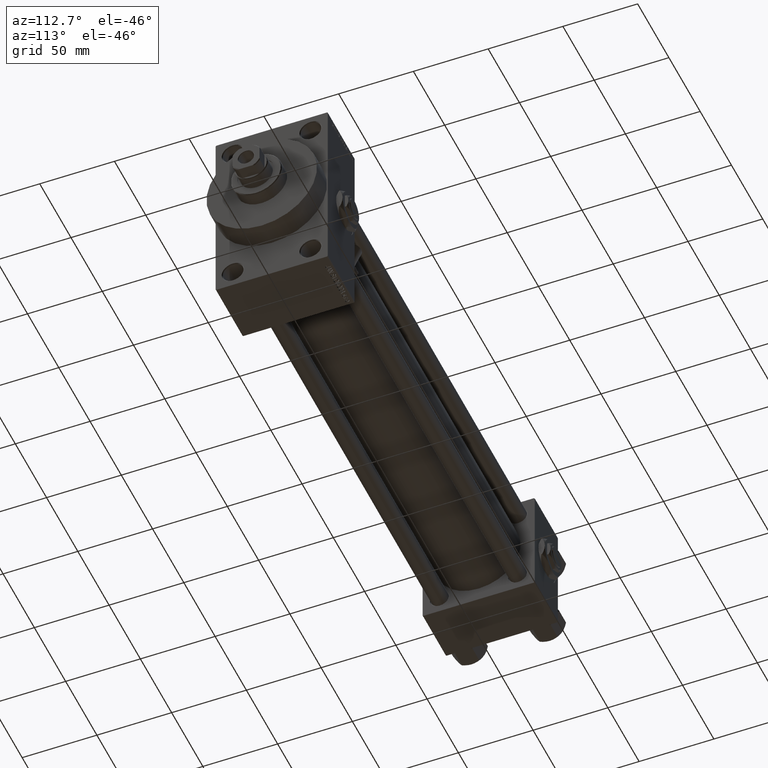
[diagram: clean part render]
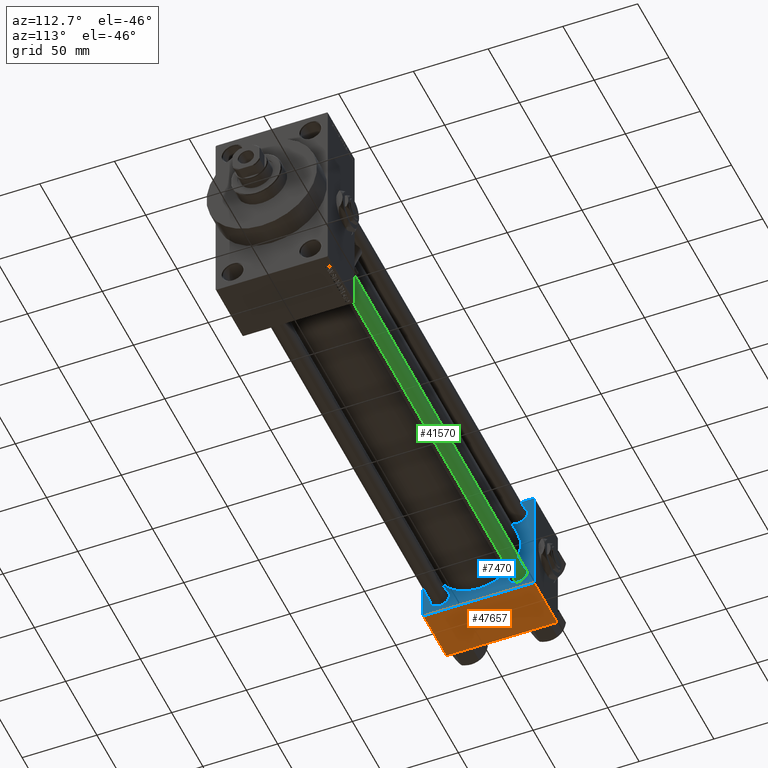
[diagram: same view with three faces highlighted in distinct colors, each labeled with its STEP entity id]
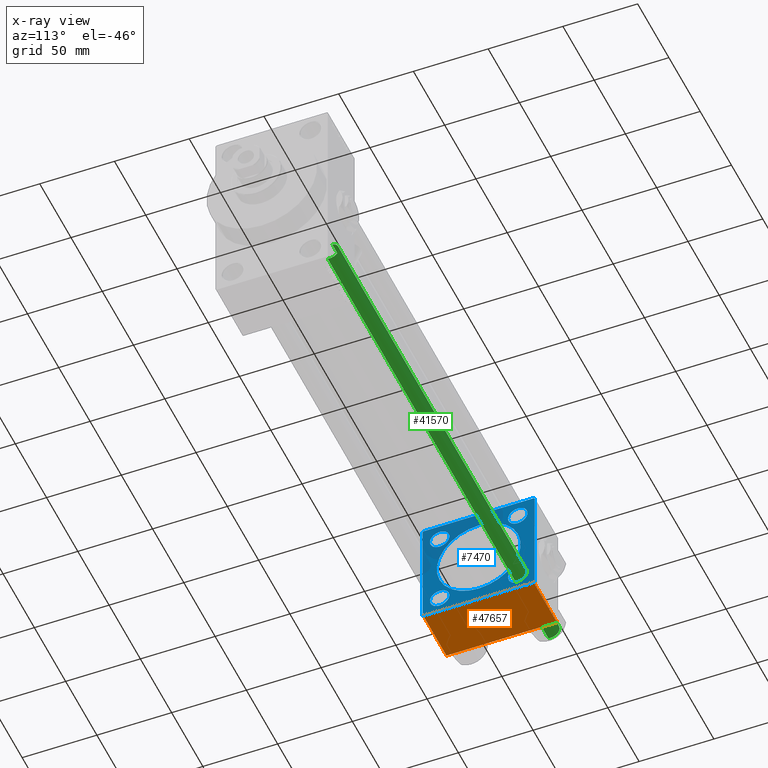
[diagram: x-ray of the same camera — body ghosted, the three highlighted faces saturated]
A machine part, auxiliary view with three faces highlighted in distinct colors.
The next image is the same camera in x-ray (body ghosted, the three faces saturated) — at least one of them is partly hidden behind the body in this view.
Their STEP definitions:

[orange] entity #47657 — the highlighted planar face has unit normal (0, 0, -1).
#294 = PLANE ( 'NONE',  #47073 ) ;
#401 = EDGE_CURVE ( 'NONE', #46574, #18108, #18224, .T. ) ;
#1206 = EDGE_CURVE ( 'NONE', #40966, #29653, #17721, .T. ) ;
#1960 = CARTESIAN_POINT ( 'NONE',  ( 37.00000000000000000, 36.99999999999997868, -37.50000000000000000 ) ) ;
#2507 = VECTOR ( 'NONE', #27239, 1000.000000000000000 ) ;
#2565 = ORIENTED_EDGE ( 'NONE', *, *, #12684, .F. ) ;
#2721 = DIRECTION ( 'NONE',  ( 1.000000000000000000, 0.000000000000000000, 0.000000000000000000 ) ) ;
#7220 = VECTOR ( 'NONE', #2721, 1000.000000000000000 ) ;
#8180 = DIRECTION ( 'NONE',  ( 0.000000000000000000, 1.000000000000000000, 9.251858538542972814E-17 ) ) ;
#11723 = CARTESIAN_POINT ( 'NONE',  ( 0.000000000000000000, 37.49999999999999289, -37.50000000000000000 ) ) ;
#12083 = CARTESIAN_POINT ( 'NONE',  ( 37.00000000000000000, 37.49999999999999289, -37.50000000000000000 ) ) ;
#12684 = EDGE_CURVE ( 'NONE', #46574, #29653, #26991, .T. ) ;
#12822 = LINE ( 'NONE', #12083, #40288 ) ;
#13932 = ORIENTED_EDGE ( 'NONE', *, *, #1206, .T. ) ;
#16181 = VECTOR ( 'NONE', #25609, 1000.000000000000000 ) ;
#17721 = LINE ( 'NONE', #49523, #16181 ) ;
#18108 = VERTEX_POINT ( 'NONE', #40912 ) ;
#18224 = LINE ( 'NONE', #1960, #7220 ) ;
#24024 = DIRECTION ( 'NONE',  ( 0.000000000000000000, -1.000000000000000000, -9.251858538542972814E-17 ) ) ;
#25609 = DIRECTION ( 'NONE',  ( -1.000000000000000000, 0.000000000000000000, 0.000000000000000000 ) ) ;
#26261 = CARTESIAN_POINT ( 'NONE',  ( 0.000000000000000000, -37.00000000000002132, -37.50000000000000711 ) ) ;
#26706 = ORIENTED_EDGE ( 'NONE', *, *, #39604, .T. ) ;
#26991 = LINE ( 'NONE', #11723, #2507 ) ;
#27239 = DIRECTION ( 'NONE',  ( 0.000000000000000000, -1.000000000000000000, -9.251858538542972814E-17 ) ) ;
#27495 = CARTESIAN_POINT ( 'NONE',  ( 37.00000000000000000, 37.49999999999999289, -37.50000000000000000 ) ) ;
#29653 = VERTEX_POINT ( 'NONE', #26261 ) ;
#30021 = EDGE_LOOP ( 'NONE', ( #2565, #38252, #26706, #13932 ) ) ;
#33302 = CARTESIAN_POINT ( 'NONE',  ( 37.00000000000000000, -37.00000000000002132, -37.50000000000000711 ) ) ;
#38252 = ORIENTED_EDGE ( 'NONE', *, *, #401, .T. ) ;
#39239 = CARTESIAN_POINT ( 'NONE',  ( 0.000000000000000000, 36.99999999999997868, -37.50000000000000000 ) ) ;
#39604 = EDGE_CURVE ( 'NONE', #18108, #40966, #12822, .T. ) ;
#40288 = VECTOR ( 'NONE', #24024, 1000.000000000000000 ) ;
#40912 = CARTESIAN_POINT ( 'NONE',  ( 37.00000000000000000, 36.99999999999997868, -37.50000000000000000 ) ) ;
#40966 = VERTEX_POINT ( 'NONE', #33302 ) ;
#43015 = DIRECTION ( 'NONE',  ( 0.000000000000000000, 9.251858538542972814E-17, -1.000000000000000000 ) ) ;
#43258 = FACE_OUTER_BOUND ( 'NONE', #30021, .T. ) ;
#46574 = VERTEX_POINT ( 'NONE', #39239 ) ;
#47073 = AXIS2_PLACEMENT_3D ( 'NONE', #27495, #43015, #8180 ) ;
#47657 = ADVANCED_FACE ( 'NONE', ( #43258 ), #294, .T. ) ;
#49523 = CARTESIAN_POINT ( 'NONE',  ( 0.000000000000000000, -37.00000000000002132, -37.50000000000000711 ) ) ;

[blue] entity #7470 — the highlighted planar face has unit normal (-1, 0, 0).
#482 = ORIENTED_EDGE ( 'NONE', *, *, #45947, .T. ) ;
#1486 = CARTESIAN_POINT ( 'NONE',  ( 37.00000000000000000, 26.14999999999999858, 26.15000000000000213 ) ) ;
#1542 = CIRCLE ( 'NONE', #28928, 6.499999999999946709 ) ;
#2047 = CARTESIAN_POINT ( 'NONE',  ( 37.00000000000000000, -26.14999999999999147, -26.15000000000000924 ) ) ;
#2202 = CARTESIAN_POINT ( 'NONE',  ( 37.00000000000000000, 37.49999999999999289, -36.99999999999998579 ) ) ;
#2394 = DIRECTION ( 'NONE',  ( 0.000000000000000000, 0.000000000000000000, 1.000000000000000000 ) ) ;
#2999 = EDGE_CURVE ( 'NONE', #43714, #22011, #1542, .T. ) ;
#3172 = VERTEX_POINT ( 'NONE', #20023 ) ;
#3306 = VERTEX_POINT ( 'NONE', #48496 ) ;
#3521 = EDGE_CURVE ( 'NONE', #3172, #40966, #14662, .T. ) ;
#4060 = DIRECTION ( 'NONE',  ( 0.000000000000000000, -0.7071067811865474617, 0.7071067811865474617 ) ) ;
#4767 = DIRECTION ( 'NONE',  ( -1.000000000000000000, 0.000000000000000000, -0.000000000000000000 ) ) ;
#5232 = PLANE ( 'NONE',  #25073 ) ;
#5485 = FACE_BOUND ( 'NONE', #36695, .T. ) ;
#5591 = CIRCLE ( 'NONE', #13670, 6.500000000000002665 ) ;
#6084 = CIRCLE ( 'NONE', #34515, 6.500000000000002665 ) ;
#6402 = DIRECTION ( 'NONE',  ( -1.000000000000000000, 0.000000000000000000, -0.000000000000000000 ) ) ;
#6717 = DIRECTION ( 'NONE',  ( 1.000000000000000000, -0.000000000000000000, 0.000000000000000000 ) ) ;
#7049 = CARTESIAN_POINT ( 'NONE',  ( 37.00000000000000000, 26.14999999999999858, 32.65000000000001279 ) ) ;
#7396 = VERTEX_POINT ( 'NONE', #40060 ) ;
#7470 = ADVANCED_FACE ( 'NONE', ( #44143, #5485, #9542, #24043, #48206, #13353 ), #5232, .F. ) ;
#7745 = CARTESIAN_POINT ( 'NONE',  ( 36.99999999999997868, -2.602085213965210642E-15, 28.00000000000000000 ) ) ;
#7768 = EDGE_CURVE ( 'NONE', #9181, #3306, #8726, .T. ) ;
#7828 = EDGE_CURVE ( 'NONE', #3306, #3172, #47897, .T. ) ;
#8147 = ORIENTED_EDGE ( 'NONE', *, *, #41182, .T. ) ;
#8637 = DIRECTION ( 'NONE',  ( -0.000000000000000000, 0.7071067811865474617, 0.7071067811865474617 ) ) ;
#8726 = LINE ( 'NONE', #32378, #22640 ) ;
#8893 = CARTESIAN_POINT ( 'NONE',  ( 37.00000000000000000, 36.99999999999999289, 37.50000000000000000 ) ) ;
#8979 = DIRECTION ( 'NONE',  ( -0.000000000000000000, -0.7071067811865474617, -0.7071067811865474617 ) ) ;
#8992 = VECTOR ( 'NONE', #8637, 1000.000000000000114 ) ;
#9181 = VERTEX_POINT ( 'NONE', #39198 ) ;
#9246 = VERTEX_POINT ( 'NONE', #16309 ) ;
#9542 = FACE_BOUND ( 'NONE', #19143, .T. ) ;
#9699 = EDGE_CURVE ( 'NONE', #13657, #7396, #12142, .T. ) ;
#9837 = CARTESIAN_POINT ( 'NONE',  ( 37.00000000000000000, 26.14999999999999858, -26.15000000000000213 ) ) ;
#10047 = CIRCLE ( 'NONE', #29548, 6.500000000000002665 ) ;
#10400 = CARTESIAN_POINT ( 'NONE',  ( 37.00000000000000000, 37.49999999999999289, 37.50000000000000000 ) ) ;
#10940 = DIRECTION ( 'NONE',  ( 0.000000000000000000, 0.000000000000000000, 1.000000000000000000 ) ) ;
#12006 = EDGE_CURVE ( 'NONE', #18108, #38473, #48302, .T. ) ;
#12083 = CARTESIAN_POINT ( 'NONE',  ( 37.00000000000000000, 37.49999999999999289, -37.50000000000000000 ) ) ;
#12142 = CIRCLE ( 'NONE', #40576, 6.499999999999953815 ) ;
#12474 = ORIENTED_EDGE ( 'NONE', *, *, #39098, .F. ) ;
#12822 = LINE ( 'NONE', #12083, #40288 ) ;
#13353 = FACE_OUTER_BOUND ( 'NONE', #28393, .T. ) ;
#13458 = CIRCLE ( 'NONE', #46795, 28.00000000000000000 ) ;
#13657 = VERTEX_POINT ( 'NONE', #46080 ) ;
#13670 = AXIS2_PLACEMENT_3D ( 'NONE', #9837, #32742, #17465 ) ;
#13739 = DIRECTION ( 'NONE',  ( -1.000000000000000000, 0.000000000000000000, -0.000000000000000000 ) ) ;
#13990 = DIRECTION ( 'NONE',  ( 0.000000000000000000, 0.000000000000000000, 1.000000000000000000 ) ) ;
#14268 = DIRECTION ( 'NONE',  ( -1.000000000000000000, 0.000000000000000000, -0.000000000000000000 ) ) ;
#14563 = DIRECTION ( 'NONE',  ( 0.000000000000000000, 0.000000000000000000, 1.000000000000000000 ) ) ;
#14662 = LINE ( 'NONE', #30184, #25034 ) ;
#14917 = ORIENTED_EDGE ( 'NONE', *, *, #9699, .T. ) ;
#15086 = CIRCLE ( 'NONE', #29725, 6.500000000000002665 ) ;
#15505 = LINE ( 'NONE', #49843, #38642 ) ;
#15851 = EDGE_CURVE ( 'NONE', #33200, #38473, #41951, .T. ) ;
#16309 = CARTESIAN_POINT ( 'NONE',  ( 37.00000000000000000, 26.14999999999999858, 19.64999999999999858 ) ) ;
#16461 = CARTESIAN_POINT ( 'NONE',  ( 37.00000000000000000, -26.14999999999999147, -26.15000000000000924 ) ) ;
#16512 = CARTESIAN_POINT ( 'NONE',  ( 37.00000000000000000, 37.49999999999999289, -36.99999999999998579 ) ) ;
#16741 = DIRECTION ( 'NONE',  ( -1.000000000000000000, 0.000000000000000000, -0.000000000000000000 ) ) ;
#16845 = CARTESIAN_POINT ( 'NONE',  ( 37.00000000000000000, 26.14999999999999858, -19.65000000000000213 ) ) ;
#17119 = DIRECTION ( 'NONE',  ( 0.000000000000000000, 0.000000000000000000, 1.000000000000000000 ) ) ;
#17465 = DIRECTION ( 'NONE',  ( 0.000000000000000000, 0.000000000000000000, 1.000000000000000000 ) ) ;
#17516 = CARTESIAN_POINT ( 'NONE',  ( 36.99999999999997868, -2.602085213965210642E-15, 0.000000000000000000 ) ) ;
#17778 = DIRECTION ( 'NONE',  ( 0.000000000000000000, -1.000000000000000000, -9.251858538542971581E-17 ) ) ;
#18108 = VERTEX_POINT ( 'NONE', #40912 ) ;
#18612 = EDGE_CURVE ( 'NONE', #26756, #25494, #30243, .T. ) ;
#19143 = EDGE_LOOP ( 'NONE', ( #37966, #14917 ) ) ;
#20023 = CARTESIAN_POINT ( 'NONE',  ( 37.00000000000000000, -37.50000000000000000, -37.00000000000003553 ) ) ;
#20760 = ORIENTED_EDGE ( 'NONE', *, *, #18612, .F. ) ;
#20974 = ORIENTED_EDGE ( 'NONE', *, *, #25323, .T. ) ;
#21896 = CARTESIAN_POINT ( 'NONE',  ( 37.00000000000000000, 26.14999999999999858, -26.15000000000000213 ) ) ;
#21966 = CARTESIAN_POINT ( 'NONE',  ( 36.99999999999997868, -2.602085213965210642E-15, 0.000000000000000000 ) ) ;
#22011 = VERTEX_POINT ( 'NONE', #39059 ) ;
#22067 = ORIENTED_EDGE ( 'NONE', *, *, #45677, .T. ) ;
#22379 = ORIENTED_EDGE ( 'NONE', *, *, #31604, .T. ) ;
#22640 = VECTOR ( 'NONE', #8979, 1000.000000000000114 ) ;
#23089 = CARTESIAN_POINT ( 'NONE',  ( 37.00000000000000000, 26.14999999999999858, -32.65000000000000568 ) ) ;
#23842 = DIRECTION ( 'NONE',  ( 0.000000000000000000, 0.000000000000000000, 1.000000000000000000 ) ) ;
#24024 = DIRECTION ( 'NONE',  ( 0.000000000000000000, -1.000000000000000000, -9.251858538542972814E-17 ) ) ;
#24043 = FACE_BOUND ( 'NONE', #49340, .T. ) ;
#24992 = DIRECTION ( 'NONE',  ( -1.000000000000000000, 0.000000000000000000, -0.000000000000000000 ) ) ;
#25034 = VECTOR ( 'NONE', #26597, 1000.000000000000000 ) ;
#25073 = AXIS2_PLACEMENT_3D ( 'NONE', #28870, #39555, #40566 ) ;
#25323 = EDGE_CURVE ( 'NONE', #32545, #37132, #6084, .T. ) ;
#25355 = VECTOR ( 'NONE', #45276, 1000.000000000000000 ) ;
#25494 = VERTEX_POINT ( 'NONE', #46933 ) ;
#25727 = AXIS2_PLACEMENT_3D ( 'NONE', #16461, #4767, #23842 ) ;
#26115 = ORIENTED_EDGE ( 'NONE', *, *, #12006, .T. ) ;
#26197 = ORIENTED_EDGE ( 'NONE', *, *, #39604, .F. ) ;
#26597 = DIRECTION ( 'NONE',  ( 0.000000000000000000, 0.7071067811865524577, -0.7071067811865426878 ) ) ;
#26756 = VERTEX_POINT ( 'NONE', #7745 ) ;
#26940 = EDGE_CURVE ( 'NONE', #33200, #38972, #15505, .T. ) ;
#27168 = EDGE_CURVE ( 'NONE', #9246, #46945, #15086, .T. ) ;
#28393 = EDGE_LOOP ( 'NONE', ( #26197, #26115, #34674, #35458, #22067, #33392, #28876, #39013 ) ) ;
#28870 = CARTESIAN_POINT ( 'NONE',  ( 37.00000000000000000, 0.000000000000000000, 0.000000000000000000 ) ) ;
#28876 = ORIENTED_EDGE ( 'NONE', *, *, #7828, .T. ) ;
#28928 = AXIS2_PLACEMENT_3D ( 'NONE', #2047, #13739, #13990 ) ;
#29227 = DIRECTION ( 'NONE',  ( 1.000000000000000000, -0.000000000000000000, 0.000000000000000000 ) ) ;
#29548 = AXIS2_PLACEMENT_3D ( 'NONE', #30050, #6402, #10940 ) ;
#29725 = AXIS2_PLACEMENT_3D ( 'NONE', #1486, #16741, #35323 ) ;
#29880 = CIRCLE ( 'NONE', #37189, 6.499999999999953815 ) ;
#30022 = CARTESIAN_POINT ( 'NONE',  ( 37.00000000000000000, 37.49999999999999289, 37.50000000000000000 ) ) ;
#30050 = CARTESIAN_POINT ( 'NONE',  ( 37.00000000000000000, 26.14999999999999858, 26.15000000000000213 ) ) ;
#30184 = CARTESIAN_POINT ( 'NONE',  ( 37.00000000000000000, -37.00000000000002132, -37.50000000000000711 ) ) ;
#30243 = CIRCLE ( 'NONE', #31858, 28.00000000000000000 ) ;
#30591 = CARTESIAN_POINT ( 'NONE',  ( 37.00000000000000000, -26.14999999999999147, 26.15000000000000924 ) ) ;
#31336 = ORIENTED_EDGE ( 'NONE', *, *, #2999, .T. ) ;
#31604 = EDGE_CURVE ( 'NONE', #46945, #9246, #10047, .T. ) ;
#31858 = AXIS2_PLACEMENT_3D ( 'NONE', #21966, #6717, #2394 ) ;
#32062 = EDGE_LOOP ( 'NONE', ( #20760, #12474 ) ) ;
#32378 = CARTESIAN_POINT ( 'NONE',  ( 37.00000000000000000, -37.50000000000000711, 36.99999999999999289 ) ) ;
#32545 = VERTEX_POINT ( 'NONE', #16845 ) ;
#32742 = DIRECTION ( 'NONE',  ( -1.000000000000000000, 0.000000000000000000, -0.000000000000000000 ) ) ;
#33200 = VERTEX_POINT ( 'NONE', #41573 ) ;
#33302 = CARTESIAN_POINT ( 'NONE',  ( 37.00000000000000000, -37.00000000000002132, -37.50000000000000711 ) ) ;
#33392 = ORIENTED_EDGE ( 'NONE', *, *, #7768, .T. ) ;
#33562 = LINE ( 'NONE', #10400, #50254 ) ;
#34515 = AXIS2_PLACEMENT_3D ( 'NONE', #21896, #14268, #36404 ) ;
#34674 = ORIENTED_EDGE ( 'NONE', *, *, #15851, .F. ) ;
#35323 = DIRECTION ( 'NONE',  ( 0.000000000000000000, 0.000000000000000000, 1.000000000000000000 ) ) ;
#35458 = ORIENTED_EDGE ( 'NONE', *, *, #26940, .T. ) ;
#36404 = DIRECTION ( 'NONE',  ( 0.000000000000000000, 0.000000000000000000, 1.000000000000000000 ) ) ;
#36695 = EDGE_LOOP ( 'NONE', ( #482, #20974 ) ) ;
#37132 = VERTEX_POINT ( 'NONE', #23089 ) ;
#37189 = AXIS2_PLACEMENT_3D ( 'NONE', #30591, #46090, #14563 ) ;
#37966 = ORIENTED_EDGE ( 'NONE', *, *, #43865, .T. ) ;
#38473 = VERTEX_POINT ( 'NONE', #2202 ) ;
#38642 = VECTOR ( 'NONE', #4060, 1000.000000000000114 ) ;
#38972 = VERTEX_POINT ( 'NONE', #8893 ) ;
#39013 = ORIENTED_EDGE ( 'NONE', *, *, #3521, .T. ) ;
#39059 = CARTESIAN_POINT ( 'NONE',  ( 37.00000000000000000, -26.14999999999999147, -32.64999999999995595 ) ) ;
#39098 = EDGE_CURVE ( 'NONE', #25494, #26756, #13458, .T. ) ;
#39198 = CARTESIAN_POINT ( 'NONE',  ( 37.00000000000000000, -37.00000000000000711, 37.49999999999999289 ) ) ;
#39517 = CIRCLE ( 'NONE', #25727, 6.499999999999946709 ) ;
#39555 = DIRECTION ( 'NONE',  ( -1.000000000000000000, 0.000000000000000000, -0.000000000000000000 ) ) ;
#39604 = EDGE_CURVE ( 'NONE', #18108, #40966, #12822, .T. ) ;
#39745 = DIRECTION ( 'NONE',  ( 0.000000000000000000, 9.251858538542971581E-17, -1.000000000000000000 ) ) ;
#40004 = CARTESIAN_POINT ( 'NONE',  ( 37.00000000000000000, -26.14999999999999147, 26.15000000000000924 ) ) ;
#40060 = CARTESIAN_POINT ( 'NONE',  ( 37.00000000000000000, -26.14999999999999147, 19.65000000000005542 ) ) ;
#40254 = CARTESIAN_POINT ( 'NONE',  ( 37.00000000000000000, -37.50000000000000711, 37.49999999999999289 ) ) ;
#40288 = VECTOR ( 'NONE', #24024, 1000.000000000000000 ) ;
#40566 = DIRECTION ( 'NONE',  ( -0.000000000000000000, 0.000000000000000000, 1.000000000000000000 ) ) ;
#40576 = AXIS2_PLACEMENT_3D ( 'NONE', #40004, #24992, #17119 ) ;
#40912 = CARTESIAN_POINT ( 'NONE',  ( 37.00000000000000000, 36.99999999999997868, -37.50000000000000000 ) ) ;
#40966 = VERTEX_POINT ( 'NONE', #33302 ) ;
#41182 = EDGE_CURVE ( 'NONE', #22011, #43714, #39517, .T. ) ;
#41427 = DIRECTION ( 'NONE',  ( 0.000000000000000000, 0.000000000000000000, 1.000000000000000000 ) ) ;
#41573 = CARTESIAN_POINT ( 'NONE',  ( 37.00000000000000000, 37.49999999999999289, 37.00000000000000000 ) ) ;
#41951 = LINE ( 'NONE', #30022, #25355 ) ;
#43579 = EDGE_LOOP ( 'NONE', ( #8147, #31336 ) ) ;
#43714 = VERTEX_POINT ( 'NONE', #49727 ) ;
#43865 = EDGE_CURVE ( 'NONE', #7396, #13657, #29880, .T. ) ;
#44143 = FACE_BOUND ( 'NONE', #43579, .T. ) ;
#44273 = ORIENTED_EDGE ( 'NONE', *, *, #27168, .T. ) ;
#45276 = DIRECTION ( 'NONE',  ( 0.000000000000000000, 0.000000000000000000, -1.000000000000000000 ) ) ;
#45677 = EDGE_CURVE ( 'NONE', #38972, #9181, #33562, .T. ) ;
#45947 = EDGE_CURVE ( 'NONE', #37132, #32545, #5591, .T. ) ;
#46080 = CARTESIAN_POINT ( 'NONE',  ( 37.00000000000000000, -26.14999999999999147, 32.64999999999996305 ) ) ;
#46090 = DIRECTION ( 'NONE',  ( -1.000000000000000000, 0.000000000000000000, -0.000000000000000000 ) ) ;
#46795 = AXIS2_PLACEMENT_3D ( 'NONE', #17516, #29227, #41427 ) ;
#46933 = CARTESIAN_POINT ( 'NONE',  ( 36.99999999999997868, 8.269258236473784371E-16, -28.00000000000000000 ) ) ;
#46945 = VERTEX_POINT ( 'NONE', #7049 ) ;
#47897 = LINE ( 'NONE', #40254, #50255 ) ;
#48206 = FACE_BOUND ( 'NONE', #32062, .T. ) ;
#48302 = LINE ( 'NONE', #16512, #8992 ) ;
#48496 = CARTESIAN_POINT ( 'NONE',  ( 37.00000000000000000, -37.50000000000000711, 36.99999999999999289 ) ) ;
#49340 = EDGE_LOOP ( 'NONE', ( #44273, #22379 ) ) ;
#49727 = CARTESIAN_POINT ( 'NONE',  ( 37.00000000000000000, -26.14999999999999147, -19.65000000000006253 ) ) ;
#49843 = CARTESIAN_POINT ( 'NONE',  ( 37.00000000000000000, 36.99999999999999289, 37.50000000000000000 ) ) ;
#50254 = VECTOR ( 'NONE', #17778, 1000.000000000000000 ) ;
#50255 = VECTOR ( 'NONE', #39745, 1000.000000000000000 ) ;

[green] entity #41570 — the highlighted cylindrical surface (edge-blend (fillet) strip) has radius 6 mm, axis along (1, -0, 0).
#323 = DIRECTION ( 'NONE',  ( -0.000000000000000000, -0.000000000000000000, 1.000000000000000000 ) ) ;
#944 = CARTESIAN_POINT ( 'NONE',  ( 6.000000000000000888, 7.347880794884120722E-16, 353.5000000000000000 ) ) ;
#1071 = CARTESIAN_POINT ( 'NONE',  ( 0.000000000000000000, 0.000000000000000000, 0.5000000000000559552 ) ) ;
#1298 = CIRCLE ( 'NONE', #43522, 6.000000000000000888 ) ;
#3226 = LINE ( 'NONE', #38567, #9856 ) ;
#7320 = CARTESIAN_POINT ( 'NONE',  ( -6.000000000000000888, 0.000000000000000000, 353.5000000000000000 ) ) ;
#9856 = VECTOR ( 'NONE', #34258, 1000.000000000000000 ) ;
#10058 = ORIENTED_EDGE ( 'NONE', *, *, #25146, .T. ) ;
#10826 = CYLINDRICAL_SURFACE ( 'NONE', #33038, 6.000000000000000888 ) ;
#13243 = DIRECTION ( 'NONE',  ( 0.000000000000000000, 0.000000000000000000, -1.000000000000000000 ) ) ;
#13269 = EDGE_CURVE ( 'NONE', #16179, #40953, #3226, .T. ) ;
#13962 = CARTESIAN_POINT ( 'NONE',  ( -6.000000000000000888, 0.000000000000000000, 0.5000000000000559552 ) ) ;
#16179 = VERTEX_POINT ( 'NONE', #7320 ) ;
#17321 = VERTEX_POINT ( 'NONE', #944 ) ;
#17886 = LINE ( 'NONE', #20944, #35275 ) ;
#18373 = VERTEX_POINT ( 'NONE', #46147 ) ;
#19648 = DIRECTION ( 'NONE',  ( 1.000000000000000000, 0.000000000000000000, 0.000000000000000000 ) ) ;
#20944 = CARTESIAN_POINT ( 'NONE',  ( 6.000000000000000888, 7.347880794884120722E-16, 354.0000000000000000 ) ) ;
#24229 = EDGE_CURVE ( 'NONE', #17321, #18373, #17886, .T. ) ;
#25146 = EDGE_CURVE ( 'NONE', #18373, #40953, #47505, .T. ) ;
#25507 = ORIENTED_EDGE ( 'NONE', *, *, #35723, .T. ) ;
#26342 = CARTESIAN_POINT ( 'NONE',  ( 0.000000000000000000, 0.000000000000000000, 354.0000000000000000 ) ) ;
#29153 = ORIENTED_EDGE ( 'NONE', *, *, #24229, .T. ) ;
#29260 = DIRECTION ( 'NONE',  ( 1.000000000000000000, 0.000000000000000000, 0.000000000000000000 ) ) ;
#30182 = FACE_OUTER_BOUND ( 'NONE', #36821, .T. ) ;
#32586 = CARTESIAN_POINT ( 'NONE',  ( 0.000000000000000000, 0.000000000000000000, 353.5000000000000000 ) ) ;
#33038 = AXIS2_PLACEMENT_3D ( 'NONE', #26342, #35728, #46689 ) ;
#33409 = DIRECTION ( 'NONE',  ( -0.000000000000000000, -0.000000000000000000, -1.000000000000000000 ) ) ;
#34258 = DIRECTION ( 'NONE',  ( -0.000000000000000000, -0.000000000000000000, -1.000000000000000000 ) ) ;
#35275 = VECTOR ( 'NONE', #33409, 1000.000000000000000 ) ;
#35723 = EDGE_CURVE ( 'NONE', #16179, #17321, #1298, .T. ) ;
#35728 = DIRECTION ( 'NONE',  ( -0.000000000000000000, -0.000000000000000000, -1.000000000000000000 ) ) ;
#36821 = EDGE_LOOP ( 'NONE', ( #25507, #29153, #10058, #42961 ) ) ;
#38567 = CARTESIAN_POINT ( 'NONE',  ( -6.000000000000000888, 0.000000000000000000, 354.0000000000000000 ) ) ;
#40953 = VERTEX_POINT ( 'NONE', #13962 ) ;
#41570 = ADVANCED_FACE ( 'NONE', ( #30182 ), #10826, .T. ) ;
#41794 = AXIS2_PLACEMENT_3D ( 'NONE', #1071, #323, #19648 ) ;
#42961 = ORIENTED_EDGE ( 'NONE', *, *, #13269, .F. ) ;
#43522 = AXIS2_PLACEMENT_3D ( 'NONE', #32586, #13243, #29260 ) ;
#46147 = CARTESIAN_POINT ( 'NONE',  ( 6.000000000000000888, 7.347880794884120722E-16, 0.5000000000000559552 ) ) ;
#46689 = DIRECTION ( 'NONE',  ( -1.000000000000000000, 0.000000000000000000, 0.000000000000000000 ) ) ;
#47505 = CIRCLE ( 'NONE', #41794, 6.000000000000000888 ) ;